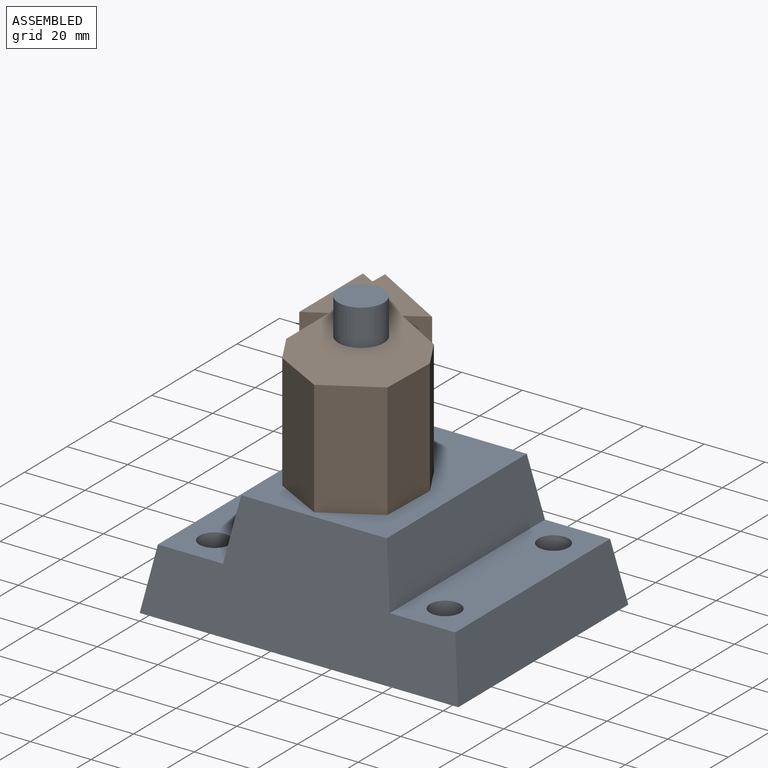
[diagram: assembled view]
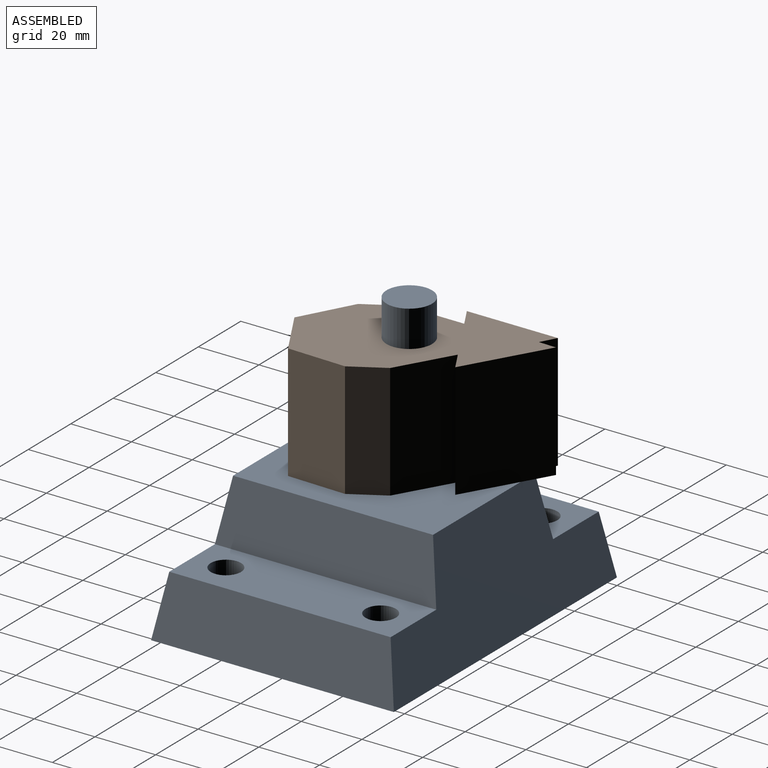
[diagram: assembled view, second angle]
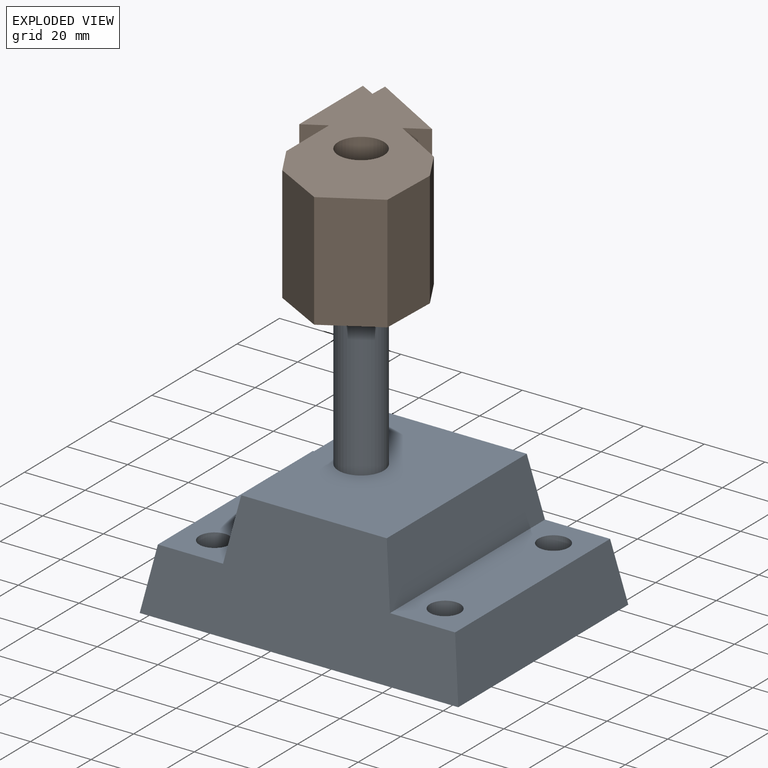
[diagram: exploded view]
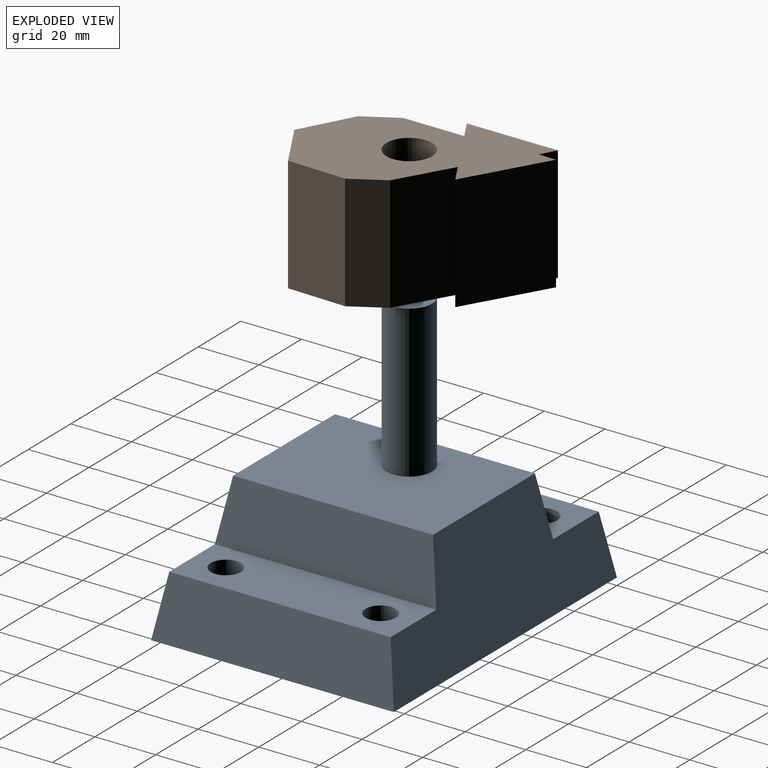
[diagram: exploded view, second angle]
ASSEMBLY  parts=2 mates=2
PART A: 16 faces, bbox 105x80x90 mm
  f0: plane 72.95x21.47mm, normal (0,0,1), area 1409.3mm2, adj f1,f2,f4,f7,f9,f11
  f1: plane 80x20mm, normal (-0.98,0,0.17), area 1553.1mm2, adj f0,f2,f4,f6
  f2: plane 105x40mm, normal (0,-0.98,0.17), area 3106.1mm2, adj f0,f1,f3,f5,f6,f11,f12,f13
  f3: plane 80x20mm, normal (0.98,0,0.17), area 1553.1mm2, adj f2,f4,f5,f6
  f4: plane 105x40mm, normal (0,0.98,0.17), area 3106.1mm2, adj f0,f1,f3,f5,f6,f11,f12,f13
  f5: plane 72.95x21.47mm, normal (0,0,1), area 1409.3mm2, adj f2,f3,f4,f8,f10,f12
  f6: plane 105x80mm, normal (0,0,-1), area 8085.8mm2, adj f1,f2,f3,f4,f7,f8,f9,f10
  f7: cylinder r=5mm len=20mm, axis (0,0,1), area 628.3mm2, adj f0,f6
  f8: cylinder r=5mm len=20mm, axis (0,0,1), area 628.3mm2, adj f5,f6
  f9: cylinder r=5mm len=20mm, axis (0,0,1), area 628.3mm2, adj f0,f6
  f10: cylinder r=5mm len=20mm, axis (0,0,1), area 628.3mm2, adj f5,f6
  f11: plane 72.95x20mm, normal (-0.98,0,0.17), area 1409.8mm2, adj f0,f2,f4,f13
  f12: plane 72.95x20mm, normal (0.98,0,0.17), area 1409.8mm2, adj f2,f4,f5,f13
  f13: plane 65.89x47.95mm, normal (0,0,1), area 2982.7mm2, adj f2,f4,f11,f12,f14
  f14: cylinder r=7.5mm len=50mm, axis (0,0,-1), area 2356.2mm2, adj f13,f15
  f15: plane 15x15mm, normal (0,0,1), area 176.7mm2, adj f14
PART B: 16 faces, bbox 40x72x38 mm
  f0: plane 38x19.85mm, normal (0,-1,0), area 754.1mm2, adj f1,f13,f14,f15
  f1: plane 38x16.34mm, normal (0.85,-0.52,0), area 729.6mm2, adj f0,f2,f14,f15
  f2: plane 38x12.22mm, normal (1,0,0), area 464.5mm2, adj f1,f3,f14,f15
  f3: plane 38x17.45mm, normal (0.87,0.5,0), area 765.9mm2, adj f2,f4,f14,f15
  f4: plane 38x8.08mm, normal (0,-1,0), area 307.2mm2, adj f3,f5,f14,f15
  f5: plane 38x25.98mm, normal (0.87,0.5,0), area 1140mm2, adj f4,f6,f14,f15
  f6: plane 38x4.88mm, normal (-0.85,0.52,0), area 217.6mm2, adj f5,f7,f14,f15
  f7: plane 38x4.88mm, normal (0.85,0.52,0), area 217.6mm2, adj f6,f8,f14,f15
  f8: plane 38x25.98mm, normal (-0.87,0.5,0), area 1140mm2, adj f7,f9,f14,f15
  f9: plane 38x8.08mm, normal (0,-1,0), area 307.2mm2, adj f8,f10,f14,f15
  f10: plane 38x17.45mm, normal (-0.87,0.5,0), area 765.9mm2, adj f9,f11,f14,f15
  f11: plane 38x12.22mm, normal (-1,0,0), area 464.5mm2, adj f10,f13,f14,f15
  f12: cylinder r=7.5mm len=38mm, axis (0,0,-1), area 1790.7mm2, adj f14,f15
  f13: plane 38x16.34mm, normal (-0.85,-0.52,0), area 729.6mm2, adj f0,f11,f14,f15
  f14: plane 72x40mm, normal (0,0,1), area 1854.7mm2, adj f0,f1,f2,f3,f4,f5,f6,f7
  f15: plane 72x40mm, normal (0,0,-1), area 1854.7mm2, adj f0,f1,f2,f3,f4,f5,f6,f7
PLACE A at identity
PLACE B rot(axis=(0,0,1),30deg) t=(59.53,14.34,40)mm
MATE cylindrical B.f12 <-> A.f14  axis (0,0,-1) through (43.53,42.05,78)mm
MATE planar B.f15 <-> A.f13  axis (0,0,-1) through (43.83,41.53,40)mm
